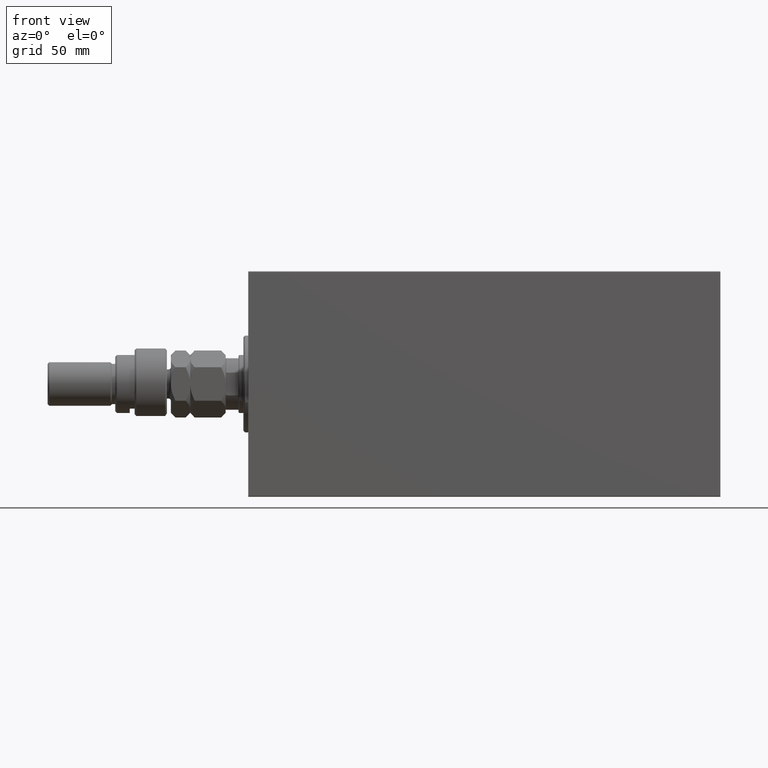
[diagram: clean part render]
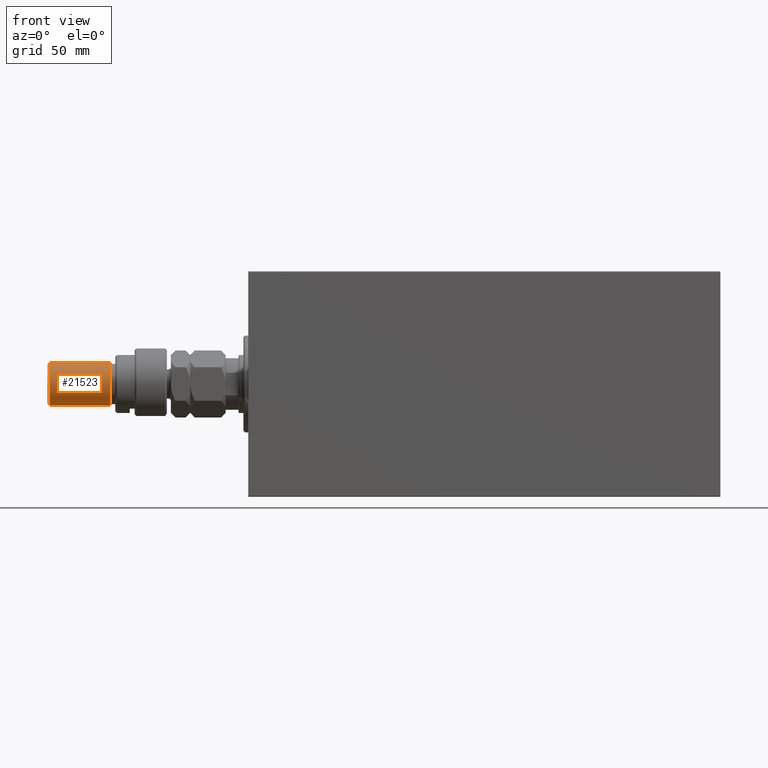
[diagram: same view with one face highlighted and labeled with its STEP entity id]
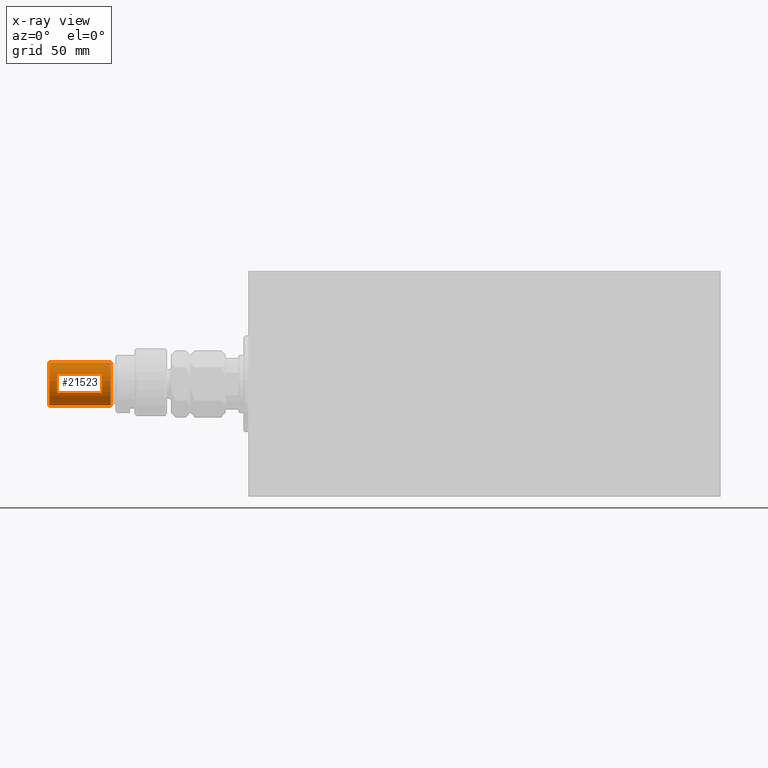
[diagram: x-ray of the same camera — body ghosted, the highlighted face saturated]
A machine part, front view. The second image highlights one B-rep face of the part: STEP entity #21523.
The next image is the same camera in x-ray: the body ghosted, the highlighted face saturated — about 0% of this face is hidden behind the body in this view.
In plain terms, the highlighted cylindrical surface (edge-blend (fillet) strip) has radius 13.5 mm, axis along (1, -0, -0).
Its self-contained STEP definition (entity closure, byte-faithful):
#1322 = EDGE_LOOP ( 'NONE', ( #15329, #30589, #8070, #20439 ) ) ;
#1493 = CARTESIAN_POINT ( 'NONE',  ( -13.50000000000000000, 0.000000000000000000, 34.99999999999999289 ) ) ;
#2850 = CYLINDRICAL_SURFACE ( 'NONE', #5918, 13.50000000000000000 ) ;
#3091 = DIRECTION ( 'NONE',  ( 0.000000000000000000, 0.000000000000000000, -1.000000000000000000 ) ) ;
#4748 = VERTEX_POINT ( 'NONE', #1493 ) ;
#5916 = CARTESIAN_POINT ( 'NONE',  ( 0.000000000000000000, 0.000000000000000000, 74.00000000000001421 ) ) ;
#5918 = AXIS2_PLACEMENT_3D ( 'NONE', #5916, #10403, #24569 ) ;
#8019 = LINE ( 'NONE', #30817, #10641 ) ;
#8070 = ORIENTED_EDGE ( 'NONE', *, *, #31677, .T. ) ;
#10403 = DIRECTION ( 'NONE',  ( -0.000000000000000000, -0.000000000000000000, -1.000000000000000000 ) ) ;
#10641 = VECTOR ( 'NONE', #26815, 1000.000000000000000 ) ;
#13397 = CARTESIAN_POINT ( 'NONE',  ( -13.50000000000000000, 0.000000000000000000, 73.00000000000001421 ) ) ;
#15176 = CARTESIAN_POINT ( 'NONE',  ( 13.50000000000000000, 1.653273178848926867E-15, 34.99999999999999289 ) ) ;
#15329 = ORIENTED_EDGE ( 'NONE', *, *, #15668, .F. ) ;
#15668 = EDGE_CURVE ( 'NONE', #17451, #43483, #41347, .T. ) ;
#16761 = DIRECTION ( 'NONE',  ( -0.000000000000000000, -0.000000000000000000, -1.000000000000000000 ) ) ;
#17451 = VERTEX_POINT ( 'NONE', #42871 ) ;
#19624 = CARTESIAN_POINT ( 'NONE',  ( 13.50000000000000000, 1.653273178848926867E-15, 74.00000000000001421 ) ) ;
#20439 = ORIENTED_EDGE ( 'NONE', *, *, #23507, .T. ) ;
#21038 = AXIS2_PLACEMENT_3D ( 'NONE', #37140, #44693, #25803 ) ;
#21523 = ADVANCED_FACE ( 'NONE', ( #38266 ), #2850, .T. ) ;
#21561 = EDGE_CURVE ( 'NONE', #17451, #30691, #21787, .T. ) ;
#21787 = CIRCLE ( 'NONE', #37618, 13.50000000000000000 ) ;
#23507 = EDGE_CURVE ( 'NONE', #4748, #43483, #46698, .T. ) ;
#24325 = DIRECTION ( 'NONE',  ( 1.000000000000000000, 0.000000000000000000, 0.000000000000000000 ) ) ;
#24569 = DIRECTION ( 'NONE',  ( -1.000000000000000000, 0.000000000000000000, 0.000000000000000000 ) ) ;
#25803 = DIRECTION ( 'NONE',  ( 1.000000000000000000, 0.000000000000000000, 0.000000000000000000 ) ) ;
#26815 = DIRECTION ( 'NONE',  ( -0.000000000000000000, -0.000000000000000000, -1.000000000000000000 ) ) ;
#30589 = ORIENTED_EDGE ( 'NONE', *, *, #21561, .T. ) ;
#30691 = VERTEX_POINT ( 'NONE', #13397 ) ;
#30817 = CARTESIAN_POINT ( 'NONE',  ( -13.50000000000000000, 0.000000000000000000, 74.00000000000001421 ) ) ;
#31677 = EDGE_CURVE ( 'NONE', #30691, #4748, #8019, .T. ) ;
#34405 = VECTOR ( 'NONE', #16761, 1000.000000000000000 ) ;
#37140 = CARTESIAN_POINT ( 'NONE',  ( 0.000000000000000000, 0.000000000000000000, 34.99999999999999289 ) ) ;
#37618 = AXIS2_PLACEMENT_3D ( 'NONE', #45822, #3091, #24325 ) ;
#38266 = FACE_OUTER_BOUND ( 'NONE', #1322, .T. ) ;
#41347 = LINE ( 'NONE', #19624, #34405 ) ;
#42871 = CARTESIAN_POINT ( 'NONE',  ( 13.50000000000000000, 1.653273178848926867E-15, 73.00000000000001421 ) ) ;
#43483 = VERTEX_POINT ( 'NONE', #15176 ) ;
#44693 = DIRECTION ( 'NONE',  ( -0.000000000000000000, -0.000000000000000000, 1.000000000000000000 ) ) ;
#45822 = CARTESIAN_POINT ( 'NONE',  ( 0.000000000000000000, 0.000000000000000000, 73.00000000000001421 ) ) ;
#46698 = CIRCLE ( 'NONE', #21038, 13.50000000000000000 ) ;